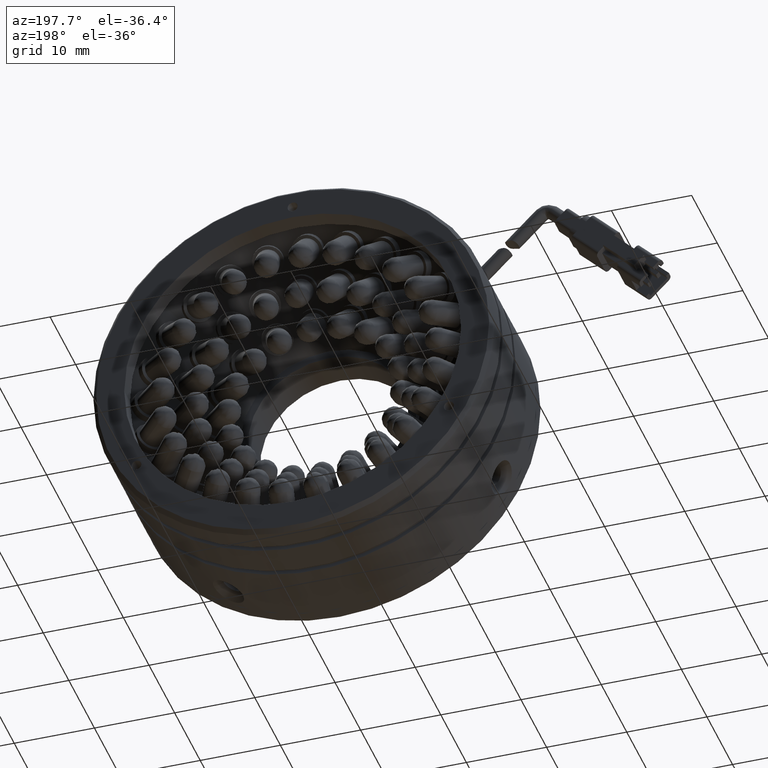
[diagram: clean part render]
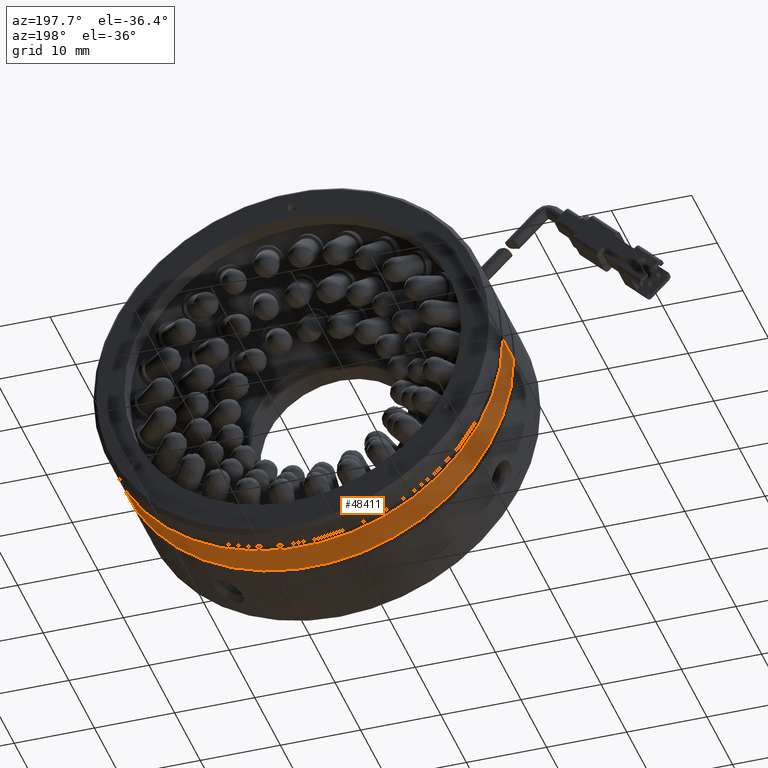
[diagram: same view with one face highlighted and labeled with its STEP entity id]
A machine part, auxiliary view. The second image highlights one B-rep face of the part: STEP entity #48411.
In plain terms, the highlighted cylindrical surface (partial cylindrical patch) has radius 25 mm, axis along (0, 1, -0).
Its self-contained STEP definition (entity closure, byte-faithful):
#1127 = EDGE_LOOP ( 'NONE', ( #22246, #31953, #38975, #47142 ) ) ;
#1745 = FACE_OUTER_BOUND ( 'NONE', #1127, .T. ) ;
#2151 = VERTEX_POINT ( 'NONE', #6604 ) ;
#4091 = CARTESIAN_POINT ( 'NONE',  ( -29.02581863871307600, 15.36823414706071000, 3.503328269843786200E-016 ) ) ;
#6604 = CARTESIAN_POINT ( 'NONE',  ( -29.02581863871307600, 11.16823414706071000, 3.503328269843786200E-016 ) ) ;
#11584 = CIRCLE ( 'NONE', #12766, 25.00000000000000000 ) ;
#12528 = EDGE_CURVE ( 'NONE', #20263, #55236, #56044, .T. ) ;
#12766 = AXIS2_PLACEMENT_3D ( 'NONE', #56767, #27934, #61580 ) ;
#16144 = DIRECTION ( 'NONE',  ( 0.0000000000000000000, 1.000000000000000000, -0.0000000000000000000 ) ) ;
#16398 = VECTOR ( 'NONE', #29175, 1000.000000000000000 ) ;
#16925 = DIRECTION ( 'NONE',  ( 0.0000000000000000000, 1.000000000000000000, -0.0000000000000000000 ) ) ;
#17370 = CARTESIAN_POINT ( 'NONE',  ( 20.97418136128692400, 15.36823414706071000, 3.422791846577617100E-015 ) ) ;
#17845 = DIRECTION ( 'NONE',  ( -1.000000000000000000, 0.0000000000000000000, -2.168404344971001200E-019 ) ) ;
#18931 = CARTESIAN_POINT ( 'NONE',  ( 20.97418136128692400, 2.168234147060708900, 3.422791846577617100E-015 ) ) ;
#19566 = CARTESIAN_POINT ( 'NONE',  ( -29.02581863871307600, 2.168234147060708900, 3.503328269843786200E-016 ) ) ;
#20263 = VERTEX_POINT ( 'NONE', #34431 ) ;
#22246 = ORIENTED_EDGE ( 'NONE', *, *, #12528, .F. ) ;
#22457 = CARTESIAN_POINT ( 'NONE',  ( -4.025818638713078100, 2.168234147060708900, 3.557538378468061400E-016 ) ) ;
#26028 = EDGE_CURVE ( 'NONE', #2151, #53373, #54748, .T. ) ;
#27037 = AXIS2_PLACEMENT_3D ( 'NONE', #44901, #16144, #49736 ) ;
#27402 = CIRCLE ( 'NONE', #27037, 25.00000000000000000 ) ;
#27934 = DIRECTION ( 'NONE',  ( -0.0000000000000000000, -1.000000000000000000, 0.0000000000000000000 ) ) ;
#29175 = DIRECTION ( 'NONE',  ( 0.0000000000000000000, 1.000000000000000000, -0.0000000000000000000 ) ) ;
#31953 = ORIENTED_EDGE ( 'NONE', *, *, #41728, .T. ) ;
#34431 = CARTESIAN_POINT ( 'NONE',  ( 20.97418136128692400, 11.16823414706071000, 3.422791846577617100E-015 ) ) ;
#38636 = EDGE_CURVE ( 'NONE', #53373, #55236, #11584, .T. ) ;
#38975 = ORIENTED_EDGE ( 'NONE', *, *, #26028, .T. ) ;
#41728 = EDGE_CURVE ( 'NONE', #20263, #2151, #27402, .T. ) ;
#43269 = VECTOR ( 'NONE', #16925, 1000.000000000000000 ) ;
#44901 = CARTESIAN_POINT ( 'NONE',  ( -4.025818638713078100, 11.16823414706071000, 3.557538378468061400E-016 ) ) ;
#46604 = CYLINDRICAL_SURFACE ( 'NONE', #55937, 25.00000000000000000 ) ;
#47142 = ORIENTED_EDGE ( 'NONE', *, *, #38636, .T. ) ;
#48411 = ADVANCED_FACE ( 'NONE', ( #1745 ), #46604, .T. ) ;
#49736 = DIRECTION ( 'NONE',  ( -1.000000000000000000, 0.0000000000000000000, -2.168404344971001200E-019 ) ) ;
#53373 = VERTEX_POINT ( 'NONE', #4091 ) ;
#54748 = LINE ( 'NONE', #19566, #16398 ) ;
#55236 = VERTEX_POINT ( 'NONE', #17370 ) ;
#55937 = AXIS2_PLACEMENT_3D ( 'NONE', #22457, #56095, #17845 ) ;
#56044 = LINE ( 'NONE', #18931, #43269 ) ;
#56095 = DIRECTION ( 'NONE',  ( 0.0000000000000000000, 1.000000000000000000, -0.0000000000000000000 ) ) ;
#56767 = CARTESIAN_POINT ( 'NONE',  ( -4.025818638713078100, 15.36823414706071000, 3.557538378468061400E-016 ) ) ;
#61580 = DIRECTION ( 'NONE',  ( -1.000000000000000000, 0.0000000000000000000, -2.168404344971001200E-019 ) ) ;